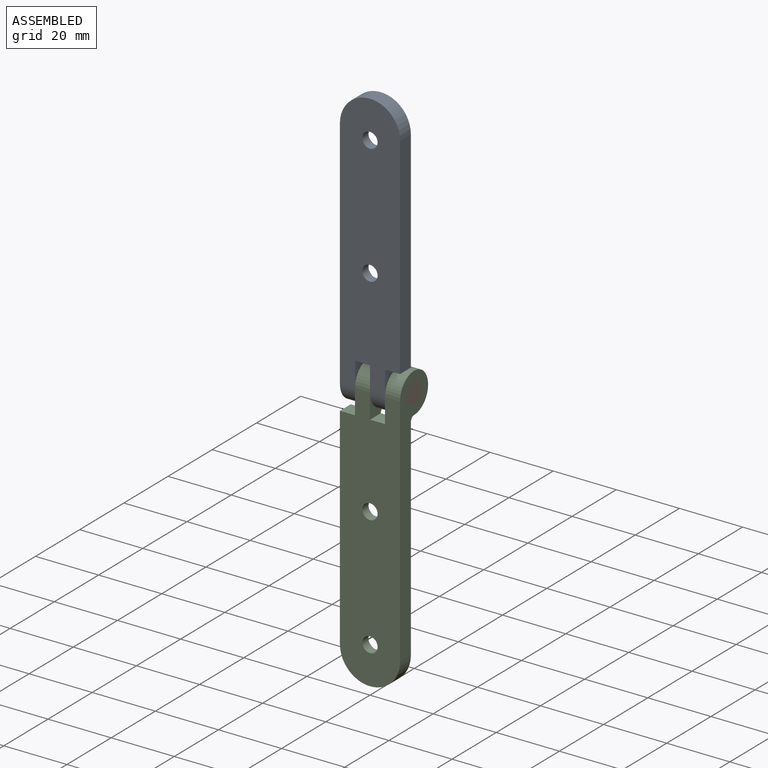
[diagram: assembled view]
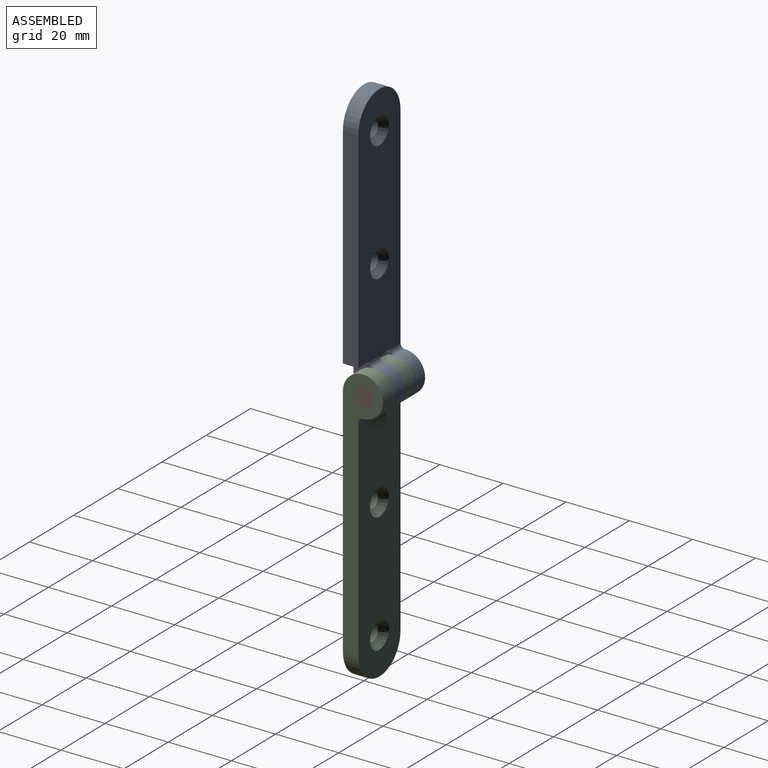
[diagram: assembled view, second angle]
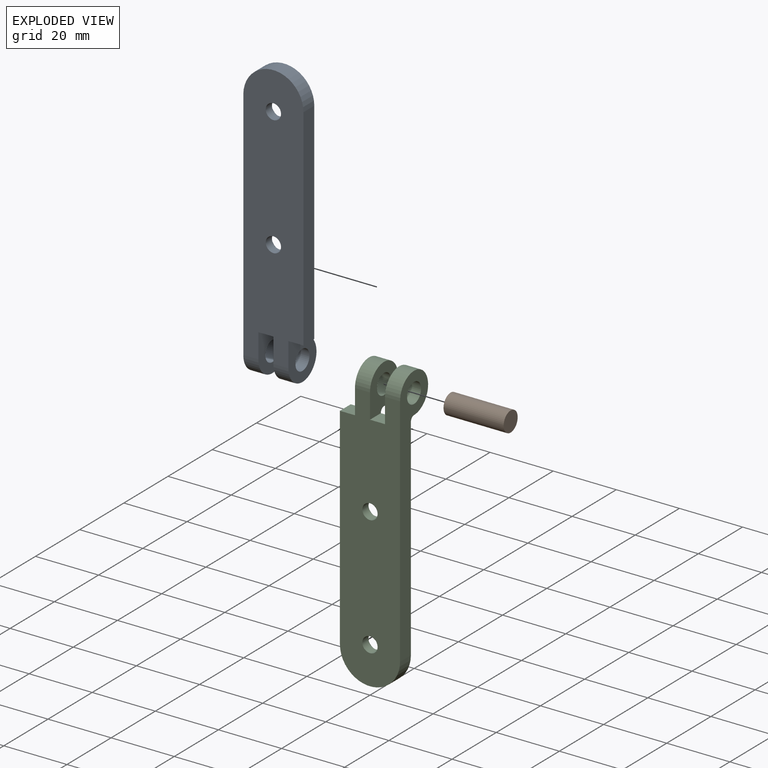
[diagram: exploded view]
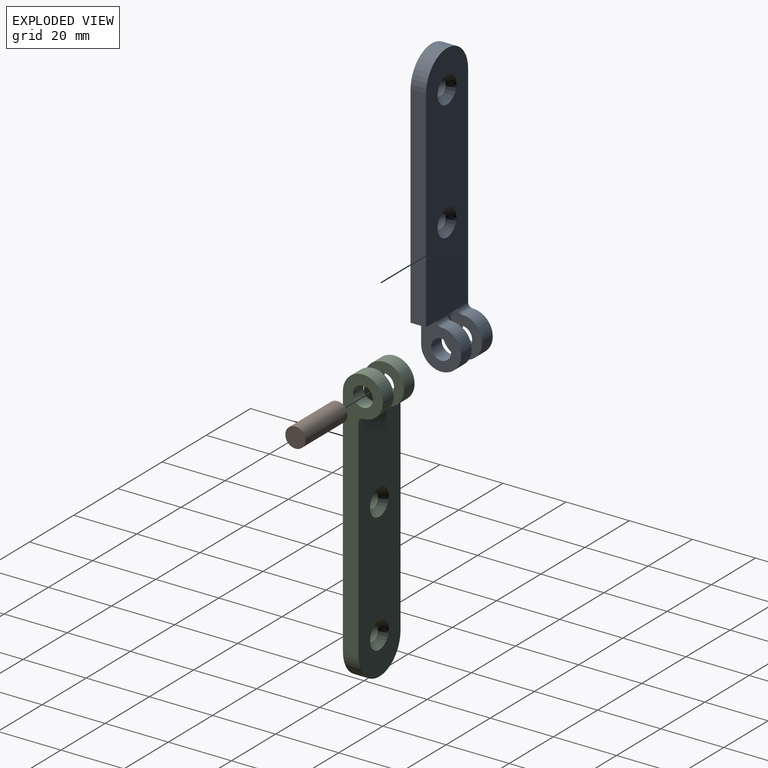
[diagram: exploded view, second angle]
ASSEMBLY  parts=3 mates=2
PART A: 20 faces, bbox 19.1x12.7x90.5 mm
  f0: cylinder r=6.35mm len=12.7mm, axis (-1,0,0), area 142.5mm2, adj f1,f2,f12,f13
  f1: cylinder r=1.45mm len=4.76mm, axis (-1,0,0), area 10.8mm2, adj f0,f9,f12,f13
  f2: plane 84.14x19.05mm, normal (0,-1,0), area 1453mm2, adj f0,f4,f5,f8,f10,f11,f12,f13
  f3: cylinder r=3.17mm len=6.35mm, axis (-1,0,0), area 95mm2, adj f12,f13
  f4: plane 66.81x4.9mm, normal (1,0,0), area 327.5mm2, adj f2,f9,f14,f15
  f5: cylinder r=6.35mm len=12.7mm, axis (-1,0,0), area 142.5mm2, adj f2,f6,f8,f11
  f6: cylinder r=1.45mm len=4.76mm, axis (-1,0,0), area 10.8mm2, adj f5,f8,f9,f11
  f7: cylinder r=3.17mm len=6.35mm, axis (-1,0,0), area 95mm2, adj f8,f11
  f8: plane 80.96x12.7mm, normal (-1,0,0), area 438.7mm2, adj f2,f5,f6,f7,f9,f15
  f9: plane 76.34x19.05mm, normal (0,1,0), area 1302.1mm2, adj f1,f4,f6,f8,f10,f14,f15,f16
  f10: plane 4.9x4.76mm, normal (0,0,-1), area 23.3mm2, adj f2,f9,f11,f12
  f11: plane 14.15x12.7mm, normal (1,0,0), area 111.2mm2, adj f2,f5,f6,f7,f10
  f12: plane 14.15x12.7mm, normal (-1,0,0), area 111.2mm2, adj f0,f1,f2,f3,f10
  f13: plane 14.15x12.7mm, normal (1,0,0), area 111.2mm2, adj f0,f1,f2,f3,f14
  f14: plane 4.9x4.76mm, normal (0,0,-1), area 23.3mm2, adj f2,f4,f9,f13
  f15: cylinder r=9.53mm len=19.05mm, axis (0,1,0), area 146.7mm2, adj f2,f4,f8,f9
  f16: cone r=4.25mm half-angle=41deg, axis (0,1,0), area 58.4mm2, adj f9,f17
  f17: cylinder r=2.41mm len=4.83mm, axis (0,1,0), area 42.4mm2, adj f2,f16
  f18: cone r=4.25mm half-angle=41deg, axis (0,1,0), area 58.4mm2, adj f9,f19
  f19: cylinder r=2.41mm len=4.83mm, axis (0,1,0), area 42.4mm2, adj f2,f18
PART B: 3 faces, bbox 19.1x6.4x6.4 mm
  f0: plane 6.35x6.35mm, normal (1,0,0), area 31.7mm2, adj f2
  f1: plane 6.35x6.35mm, normal (-1,0,0), area 31.7mm2, adj f2
  f2: cylinder r=3.17mm len=19.05mm, axis (1,0,0), area 380mm2, adj f0,f1
PART C: 20 faces, bbox 19.1x12.7x90.5 mm
  f0: cylinder r=1.45mm len=4.76mm, axis (-1,0,0), area 10.8mm2, adj f3,f8,f10,f12
  f1: cylinder r=1.45mm len=4.76mm, axis (-1,0,0), area 10.8mm2, adj f4,f8,f9,f13
  f2: plane 84.14x19.05mm, normal (0,-1,0), area 1453mm2, adj f3,f4,f7,f9,f10,f11,f12,f13
  f3: cylinder r=6.35mm len=12.7mm, axis (-1,0,0), area 142.5mm2, adj f0,f2,f10,f12
  f4: cylinder r=6.35mm len=12.7mm, axis (-1,0,0), area 142.5mm2, adj f1,f2,f9,f13
  f5: cylinder r=3.17mm len=6.35mm, axis (-1,0,0), area 95mm2, adj f10,f12
  f6: cylinder r=3.17mm len=6.35mm, axis (-1,0,0), area 95mm2, adj f9,f13
  f7: plane 66.81x4.9mm, normal (-1,0,0), area 327.5mm2, adj f2,f8,f11,f15
  f8: plane 76.34x19.05mm, normal (0,1,0), area 1302.1mm2, adj f0,f1,f7,f9,f11,f14,f15,f16
  f9: plane 80.96x12.7mm, normal (1,0,0), area 438.7mm2, adj f1,f2,f4,f6,f8,f15
  f10: plane 14.15x12.7mm, normal (-1,0,0), area 111.2mm2, adj f0,f2,f3,f5,f11
  f11: plane 4.9x4.76mm, normal (0,0,1), area 23.3mm2, adj f2,f7,f8,f10
  f12: plane 14.15x12.7mm, normal (1,0,0), area 111.2mm2, adj f0,f2,f3,f5,f14
  f13: plane 14.15x12.7mm, normal (-1,0,0), area 111.2mm2, adj f1,f2,f4,f6,f14
  f14: plane 4.9x4.76mm, normal (0,0,1), area 23.3mm2, adj f2,f8,f12,f13
  f15: cylinder r=9.53mm len=19.05mm, axis (0,1,0), area 146.7mm2, adj f2,f7,f8,f9
  f16: cone r=4.25mm half-angle=41deg, axis (0,1,0), area 58.4mm2, adj f8,f17
  f17: cylinder r=2.41mm len=4.83mm, axis (0,1,0), area 42.4mm2, adj f2,f16
  f18: cone r=4.25mm half-angle=41deg, axis (0,1,0), area 58.4mm2, adj f8,f19
  f19: cylinder r=2.41mm len=4.83mm, axis (0,1,0), area 42.4mm2, adj f2,f18
PLACE A at identity
PLACE B at identity
PLACE C at identity
MATE fastened A.f0 <-> B.f2  axis (-1,0,0) through (-9.52,6.35,0)mm
MATE revolute B.f2 <-> C.f3  axis (1,0,0) through (9.53,6.35,0)mm
